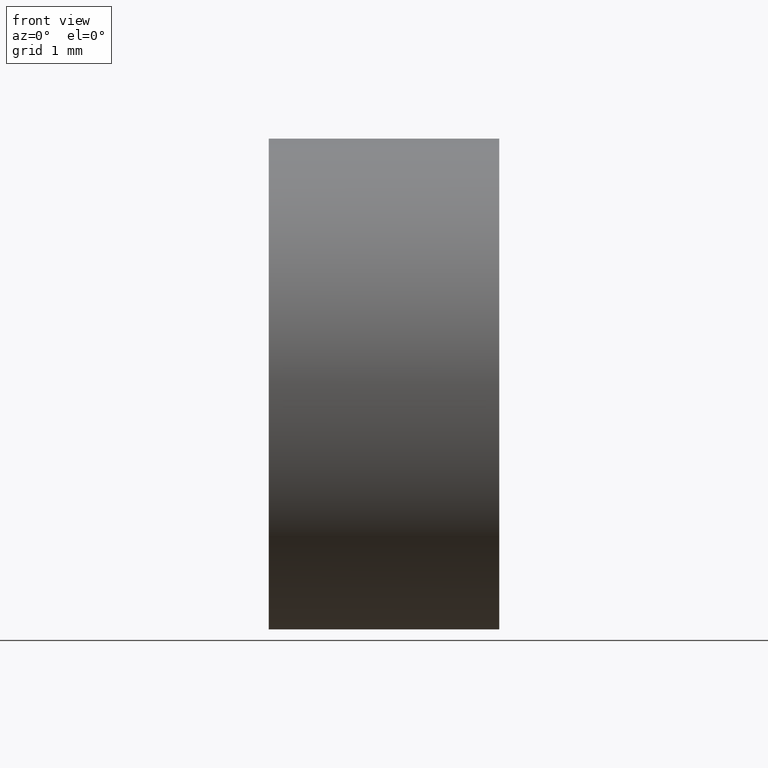
[diagram: clean part render]
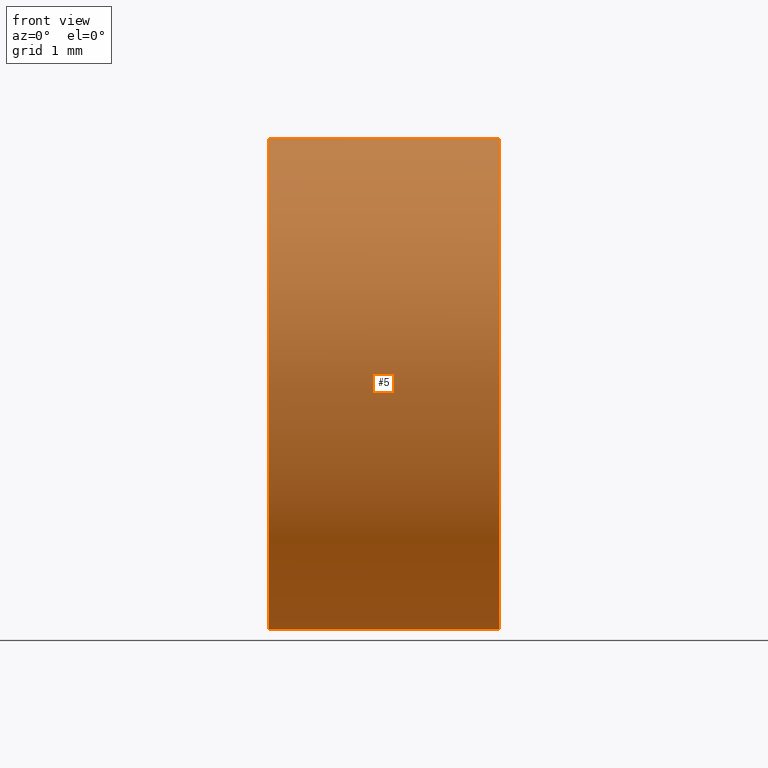
[diagram: same view with one face highlighted and labeled with its STEP entity id]
A machine part, front view. The second image highlights one B-rep face of the part: STEP entity #5.
In plain terms, the highlighted cylindrical surface (partial cylindrical patch) has radius 3.15 mm, axis along (-1, -0, -0).
Its self-contained STEP definition (entity closure, byte-faithful):
#4 = DIRECTION ( 'NONE',  ( -1.000000000000000000, -0.0000000000000000000, -0.0000000000000000000 ) ) ;
#5 = ADVANCED_FACE ( 'NONE', ( #135 ), #50, .T. ) ;
#13 = CARTESIAN_POINT ( 'NONE',  ( 20.68403063513288800, 13.03112609140304000, -3.149999999999998100 ) ) ;
#14 = CARTESIAN_POINT ( 'NONE',  ( 25.26823906860704800, 13.03112609140304000, -3.149999999999998100 ) ) ;
#19 = AXIS2_PLACEMENT_3D ( 'NONE', #35, #4, #128 ) ;
#21 = CARTESIAN_POINT ( 'NONE',  ( 20.68403063513288800, 13.03112609140304000, 3.149999999999998100 ) ) ;
#22 = VERTEX_POINT ( 'NONE', #31 ) ;
#25 = VERTEX_POINT ( 'NONE', #150 ) ;
#27 = ORIENTED_EDGE ( 'NONE', *, *, #43, .F. ) ;
#28 = AXIS2_PLACEMENT_3D ( 'NONE', #155, #80, #173 ) ;
#31 = CARTESIAN_POINT ( 'NONE',  ( 25.26823906860704800, 13.03112609140304000, 3.149999999999998100 ) ) ;
#32 = ORIENTED_EDGE ( 'NONE', *, *, #70, .T. ) ;
#35 = CARTESIAN_POINT ( 'NONE',  ( 22.30926883257449200, 13.03112609140304000, 0.0000000000000000000 ) ) ;
#41 = DIRECTION ( 'NONE',  ( -1.000000000000000000, -0.0000000000000000000, -0.0000000000000000000 ) ) ;
#43 = EDGE_CURVE ( 'NONE', #163, #131, #60, .T. ) ;
#46 = CIRCLE ( 'NONE', #28, 3.149999999999998100 ) ;
#50 = CYLINDRICAL_SURFACE ( 'NONE', #97, 3.149999999999998100 ) ;
#52 = ORIENTED_EDGE ( 'NONE', *, *, #148, .T. ) ;
#59 = DIRECTION ( 'NONE',  ( -1.000000000000000000, -0.0000000000000000000, -0.0000000000000000000 ) ) ;
#60 = LINE ( 'NONE', #13, #169 ) ;
#70 = EDGE_CURVE ( 'NONE', #163, #25, #46, .T. ) ;
#80 = DIRECTION ( 'NONE',  ( -1.000000000000000000, -0.0000000000000000000, -0.0000000000000000000 ) ) ;
#81 = EDGE_CURVE ( 'NONE', #131, #125, #96, .T. ) ;
#82 = EDGE_CURVE ( 'NONE', #22, #125, #89, .T. ) ;
#84 = CARTESIAN_POINT ( 'NONE',  ( 20.68403063513288800, 13.03112609140304000, 0.0000000000000000000 ) ) ;
#89 = LINE ( 'NONE', #21, #105 ) ;
#95 = EDGE_LOOP ( 'NONE', ( #27, #32, #52, #104, #167 ) ) ;
#96 = CIRCLE ( 'NONE', #19, 3.149999999999998100 ) ;
#97 = AXIS2_PLACEMENT_3D ( 'NONE', #84, #41, #166 ) ;
#101 = DIRECTION ( 'NONE',  ( 0.0000000000000000000, 0.0000000000000000000, 1.000000000000000000 ) ) ;
#104 = ORIENTED_EDGE ( 'NONE', *, *, #82, .T. ) ;
#105 = VECTOR ( 'NONE', #116, 1000.000000000000000 ) ;
#113 = CARTESIAN_POINT ( 'NONE',  ( 22.30926883257449200, 13.03112609140304000, 3.149999999999998100 ) ) ;
#116 = DIRECTION ( 'NONE',  ( -1.000000000000000000, -0.0000000000000000000, -0.0000000000000000000 ) ) ;
#125 = VERTEX_POINT ( 'NONE', #113 ) ;
#128 = DIRECTION ( 'NONE',  ( 0.0000000000000000000, 0.0000000000000000000, 1.000000000000000000 ) ) ;
#131 = VERTEX_POINT ( 'NONE', #153 ) ;
#135 = FACE_OUTER_BOUND ( 'NONE', #95, .T. ) ;
#137 = CIRCLE ( 'NONE', #147, 3.149999999999998100 ) ;
#140 = CARTESIAN_POINT ( 'NONE',  ( 25.26823906860704800, 13.03112609140304000, 0.0000000000000000000 ) ) ;
#147 = AXIS2_PLACEMENT_3D ( 'NONE', #140, #59, #101 ) ;
#148 = EDGE_CURVE ( 'NONE', #25, #22, #137, .T. ) ;
#150 = CARTESIAN_POINT ( 'NONE',  ( 25.26823906860704800, 9.881126091403041700, 0.0000000000000000000 ) ) ;
#152 = DIRECTION ( 'NONE',  ( -1.000000000000000000, -0.0000000000000000000, -0.0000000000000000000 ) ) ;
#153 = CARTESIAN_POINT ( 'NONE',  ( 22.30926883257449200, 13.03112609140304000, -3.149999999999998100 ) ) ;
#155 = CARTESIAN_POINT ( 'NONE',  ( 25.26823906860704800, 13.03112609140304000, 0.0000000000000000000 ) ) ;
#163 = VERTEX_POINT ( 'NONE', #14 ) ;
#166 = DIRECTION ( 'NONE',  ( 0.0000000000000000000, 0.0000000000000000000, 1.000000000000000000 ) ) ;
#167 = ORIENTED_EDGE ( 'NONE', *, *, #81, .F. ) ;
#169 = VECTOR ( 'NONE', #152, 1000.000000000000000 ) ;
#173 = DIRECTION ( 'NONE',  ( 0.0000000000000000000, 0.0000000000000000000, 1.000000000000000000 ) ) ;